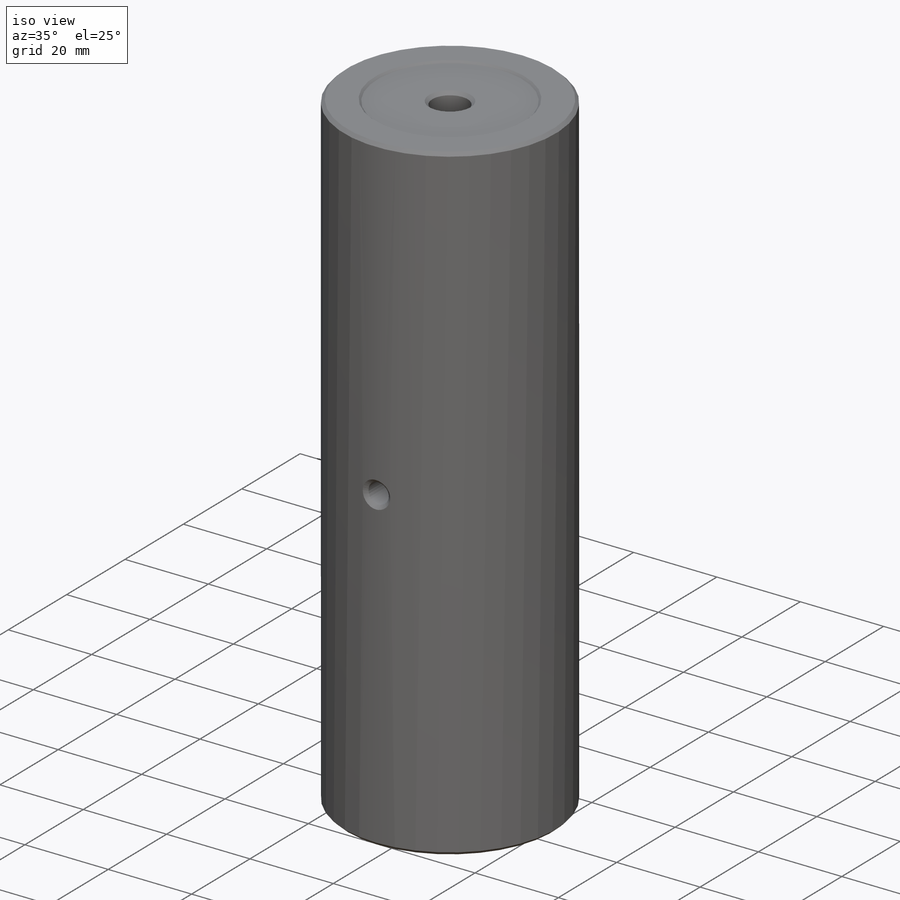
[diagram: iso view]
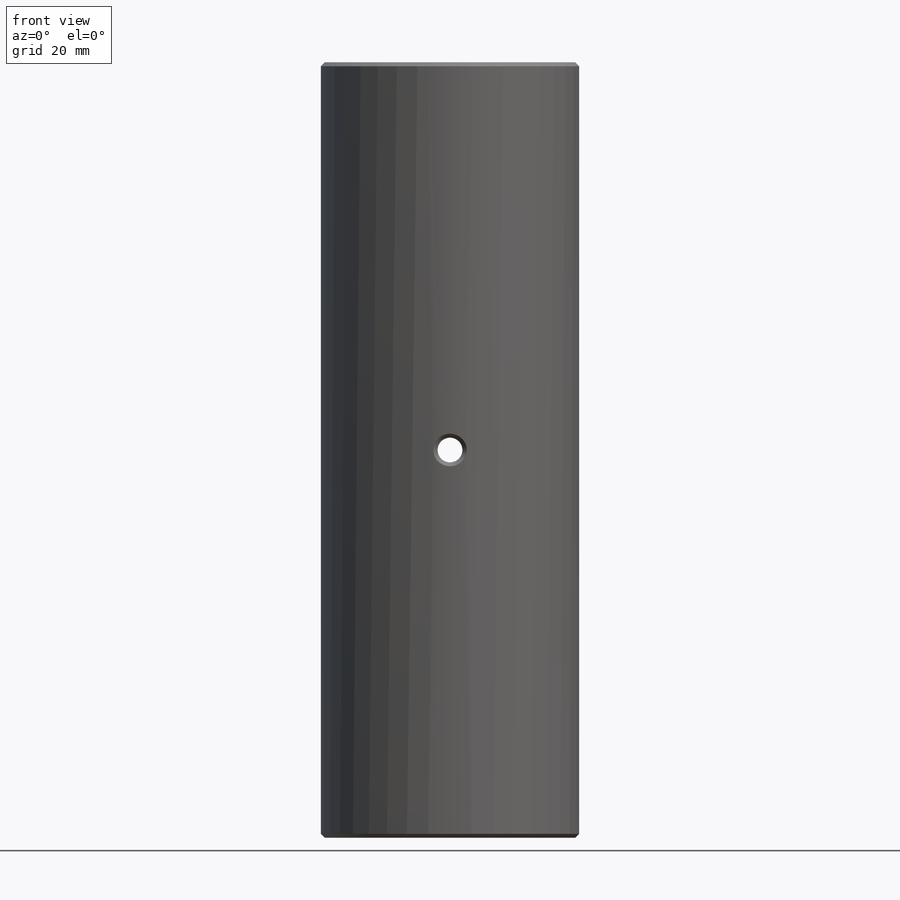
[diagram: front view]
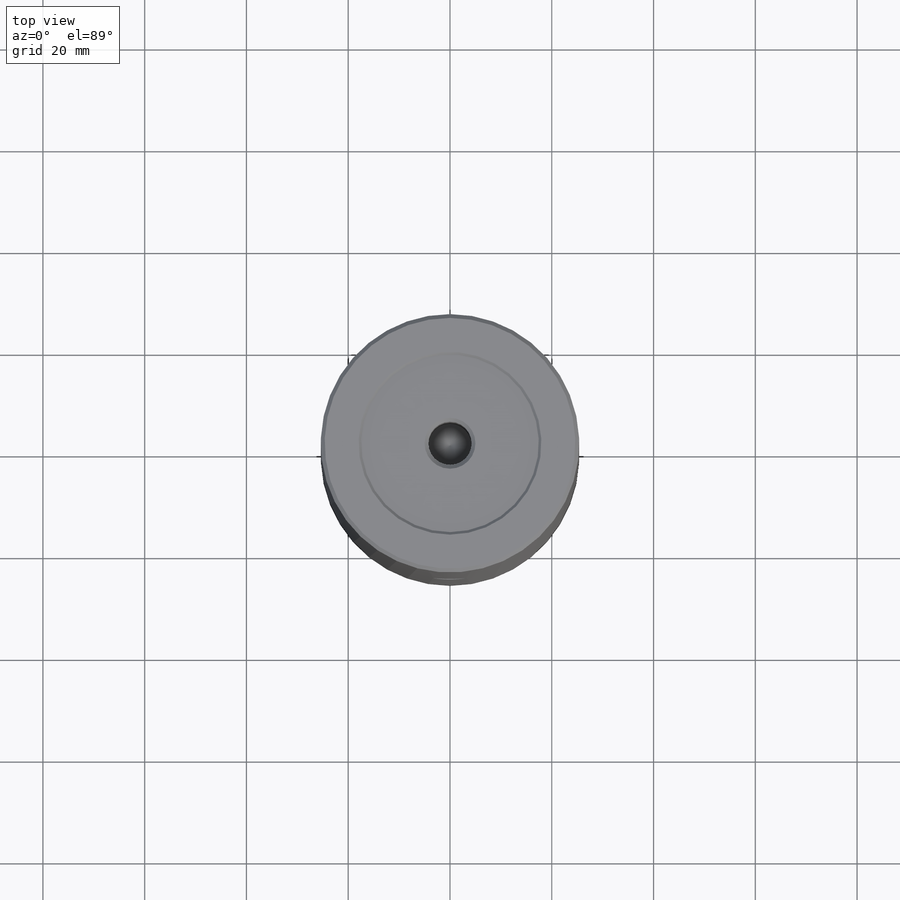
[diagram: top view]
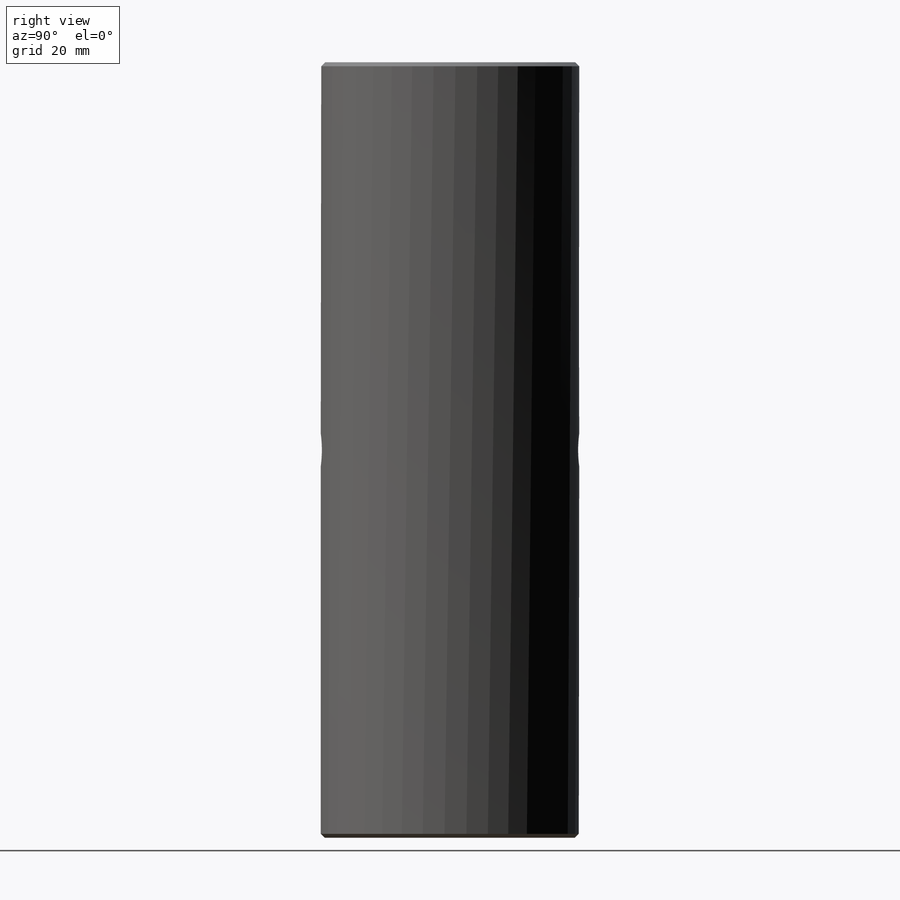
[diagram: right view]
SOLIDWORKS PART (.sldprt)
format: sldprt  version: not decoded by parser v0  size: 658,432 bytes
history: native  units: mm
features: sketch x4, plane x3, material x1, revolve x1, cut_extrude x1, chamfer x1, hole x1, thread x1, mirror x1 + 2 further entries (+8 scaffold rows collapsed)
feature tree (24):
  scaffold x8  (default folders/planes/origin — collapsed)
  material  "Material <not specified>"
  plane  "Plane X-Y"
  plane  "Plane X-Z"
  plane  "Plane Y-Z"
  "Axis - Y"
  "Axis - Z"
  sketch  "Sketch1"  dims[c1.D1=50.8mm c1.D2=0.508mm c1.D3=~2.845561mm c2.D3=45.0deg c2.D4=34.925mm c2.D5=35.941mm c2.D6=76.2mm c2.D7=7.62mm]
  revolve  "Revolve1"  Angle=360deg
  sketch  "Sketch2"  dims[D1=4.8768mm]
  cut_extrude  "Cut-Extrude1"  [1 undecoded]
  chamfer  "Chamfer2"  Distance=0.762mm Angle=45deg
  hole  "M10x1.5 Tapped Hole1"  Diameter=8.5mm Depth=21.9456mm
  sketch  "3DSketch1"
  sketch  "Sketch3"  dims[hole-wizard template sketch: 46 standard entries collapsed; hole parameters above]
  thread  "Hole Thread1"  Diameter=20.2438mm  [1 undecoded]
  mirror  "Mirror1"
decode coverage: 7 of 10 modeling features carry decoded parameters; 2 rows unclassified (native names shown)
note: ~ marks probable driven/reference dimensions
note: 2 parameter values undecoded
note: suppression state not decoded; provenance and decode notes live in map.json
